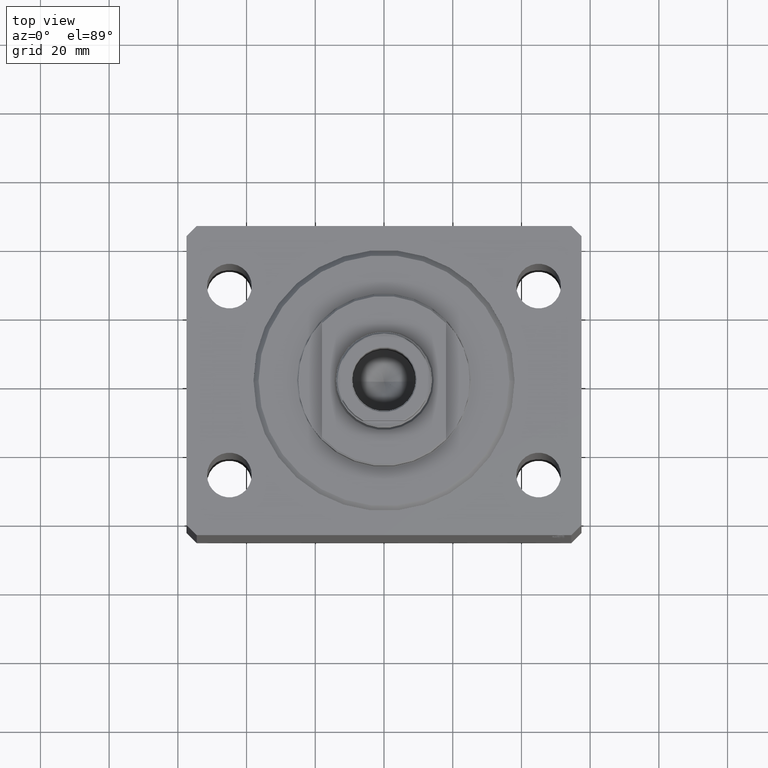
[diagram: clean part render]
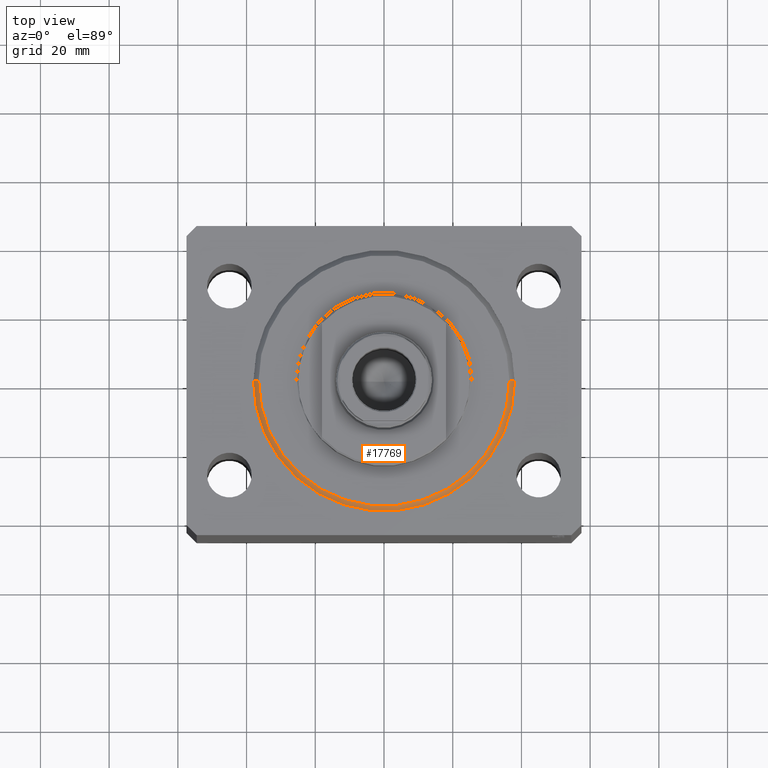
[diagram: same view with one face highlighted and labeled with its STEP entity id]
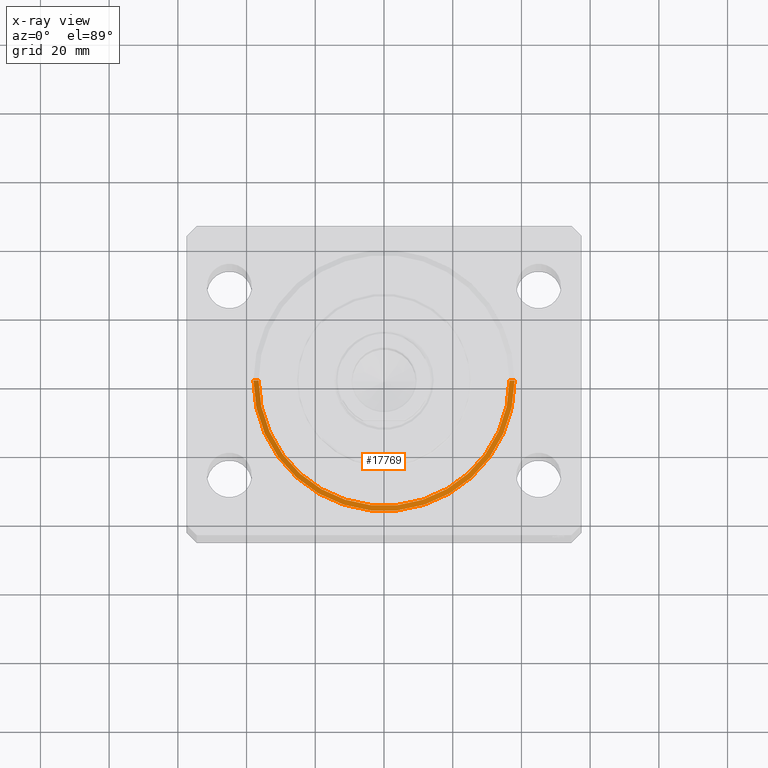
[diagram: x-ray of the same camera — body ghosted, the highlighted face saturated]
A machine part, top view. The second image highlights one B-rep face of the part: STEP entity #17769.
The next image is the same camera in x-ray: the body ghosted, the highlighted face saturated — about 0% of this face is hidden behind the body in this view.
In plain terms, the highlighted conical surface has half-angle 45 deg.
Its self-contained STEP definition (entity closure, byte-faithful):
#1696 = CARTESIAN_POINT ( 'NONE',  ( -38.00000000000000000, 0.000000000000000000, 1.499999999999987566 ) ) ;
#2923 = DIRECTION ( 'NONE',  ( 1.000000000000000000, 0.000000000000000000, 0.000000000000000000 ) ) ;
#3196 = FACE_OUTER_BOUND ( 'NONE', #40404, .T. ) ;
#5481 = CARTESIAN_POINT ( 'NONE',  ( -36.50000000000000000, 4.561809326823889791E-15, 0.000000000000000000 ) ) ;
#5697 = CARTESIAN_POINT ( 'NONE',  ( -38.00000000000000000, 4.653657836759941152E-15, 1.499999999999987566 ) ) ;
#7083 = DIRECTION ( 'NONE',  ( -0.000000000000000000, -0.000000000000000000, -1.000000000000000000 ) ) ;
#7469 = CARTESIAN_POINT ( 'NONE',  ( 0.000000000000000000, 0.000000000000000000, 1.499999999999987566 ) ) ;
#7529 = DIRECTION ( 'NONE',  ( 1.000000000000000000, 0.000000000000000000, 0.000000000000000000 ) ) ;
#7875 = EDGE_CURVE ( 'NONE', #10736, #37737, #33006, .T. ) ;
#8632 = LINE ( 'NONE', #5697, #42929 ) ;
#8695 = ORIENTED_EDGE ( 'NONE', *, *, #42325, .F. ) ;
#10136 = CARTESIAN_POINT ( 'NONE',  ( 0.000000000000000000, 0.000000000000000000, 1.499999999999987566 ) ) ;
#10261 = CARTESIAN_POINT ( 'NONE',  ( 0.000000000000000000, 0.000000000000000000, 0.000000000000000000 ) ) ;
#10736 = VERTEX_POINT ( 'NONE', #1696 ) ;
#11803 = DIRECTION ( 'NONE',  ( -0.7071067811865507924, 8.659560562354972301E-17, 0.7071067811865441310 ) ) ;
#13466 = LINE ( 'NONE', #16637, #20984 ) ;
#13486 = CARTESIAN_POINT ( 'NONE',  ( 38.00000000000000000, 4.653657836759941941E-15, 1.499999999999987566 ) ) ;
#14249 = DIRECTION ( 'NONE',  ( 1.000000000000000000, 0.000000000000000000, 0.000000000000000000 ) ) ;
#14365 = ORIENTED_EDGE ( 'NONE', *, *, #25388, .F. ) ;
#15253 = VERTEX_POINT ( 'NONE', #38887 ) ;
#16589 = CONICAL_SURFACE ( 'NONE', #22368, 38.00000000000000000, 0.7853981633974529419 ) ;
#16637 = CARTESIAN_POINT ( 'NONE',  ( 38.00000000000000000, 0.000000000000000000, 1.499999999999987566 ) ) ;
#17769 = ADVANCED_FACE ( 'NONE', ( #3196 ), #16589, .T. ) ;
#20959 = EDGE_CURVE ( 'NONE', #15253, #37737, #13466, .T. ) ;
#20984 = VECTOR ( 'NONE', #23840, 1000.000000000000114 ) ;
#21002 = CIRCLE ( 'NONE', #25331, 36.50000000000000000 ) ;
#22368 = AXIS2_PLACEMENT_3D ( 'NONE', #7469, #34990, #14249 ) ;
#23840 = DIRECTION ( 'NONE',  ( 0.7071067811865507924, 0.000000000000000000, 0.7071067811865441310 ) ) ;
#23911 = DIRECTION ( 'NONE',  ( -0.000000000000000000, -0.000000000000000000, 1.000000000000000000 ) ) ;
#25331 = AXIS2_PLACEMENT_3D ( 'NONE', #10261, #7083, #7529 ) ;
#25388 = EDGE_CURVE ( 'NONE', #15253, #42331, #21002, .T. ) ;
#25840 = AXIS2_PLACEMENT_3D ( 'NONE', #10136, #23911, #2923 ) ;
#26072 = ORIENTED_EDGE ( 'NONE', *, *, #7875, .F. ) ;
#33006 = CIRCLE ( 'NONE', #25840, 38.00000000000000000 ) ;
#34990 = DIRECTION ( 'NONE',  ( -0.000000000000000000, -0.000000000000000000, 1.000000000000000000 ) ) ;
#36807 = ORIENTED_EDGE ( 'NONE', *, *, #20959, .T. ) ;
#37737 = VERTEX_POINT ( 'NONE', #13486 ) ;
#38887 = CARTESIAN_POINT ( 'NONE',  ( 36.50000000000000000, 0.000000000000000000, 0.000000000000000000 ) ) ;
#40404 = EDGE_LOOP ( 'NONE', ( #8695, #14365, #36807, #26072 ) ) ;
#42325 = EDGE_CURVE ( 'NONE', #42331, #10736, #8632, .T. ) ;
#42331 = VERTEX_POINT ( 'NONE', #5481 ) ;
#42929 = VECTOR ( 'NONE', #11803, 1000.000000000000114 ) ;